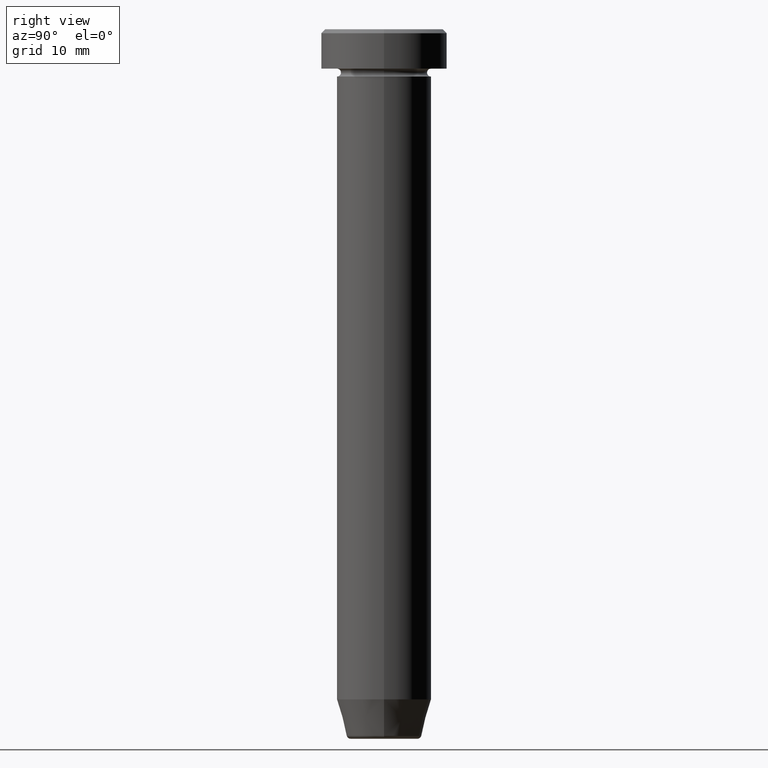
[diagram: clean part render]
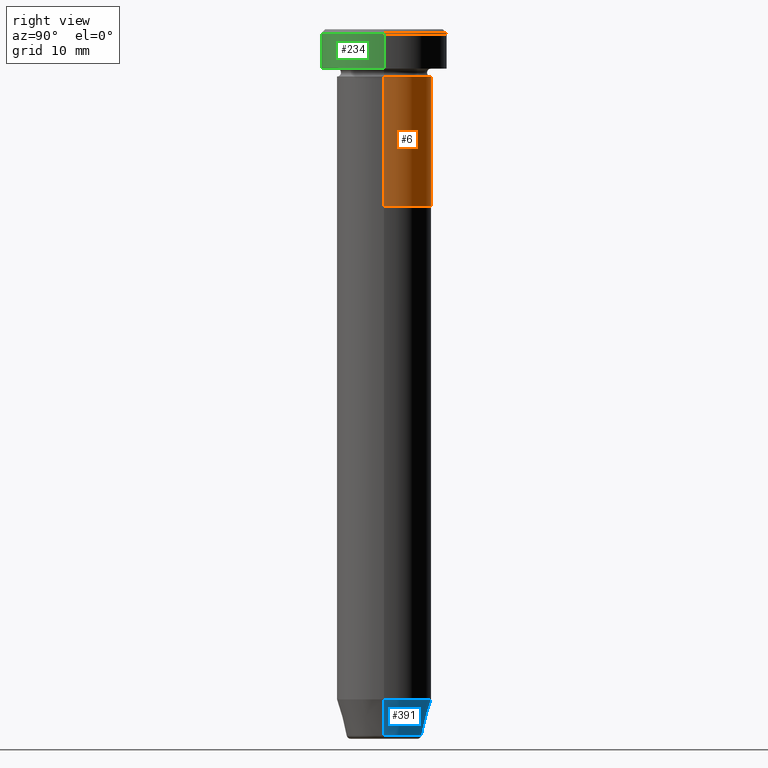
[diagram: same view with three faces highlighted in distinct colors, each labeled with its STEP entity id]
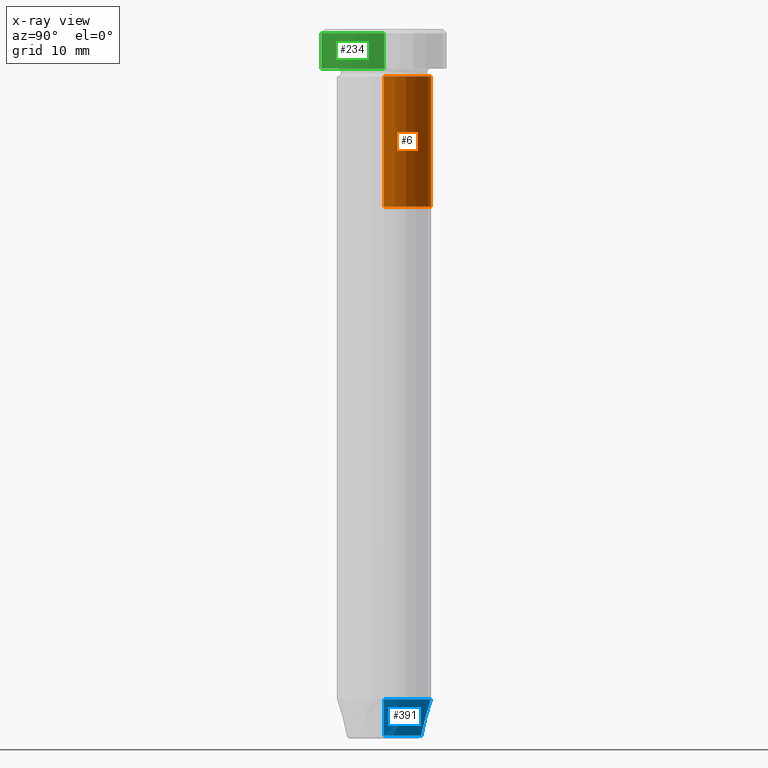
[diagram: x-ray of the same camera — body ghosted, the three highlighted faces saturated]
A machine part, right view with three faces highlighted in distinct colors.
The next image is the same camera in x-ray (body ghosted, the three faces saturated) — at least one of them is partly hidden behind the body in this view.
Their STEP definitions:

[orange] entity #6 — the highlighted cylindrical surface (partial cylindrical patch) has radius 6 mm, axis along (-0, -0, 1).
#6 = ADVANCED_FACE ( 'NONE', ( #348 ), #164, .T. ) ;
#26 = DIRECTION ( 'NONE',  ( -0.000000000000000000, -0.000000000000000000, 1.000000000000000000 ) ) ;
#31 = DIRECTION ( 'NONE',  ( -0.000000000000000000, -0.000000000000000000, 1.000000000000000000 ) ) ;
#35 = CARTESIAN_POINT ( 'NONE',  ( -6.000000000000000000, 7.347880794884119736E-16, 0.000000000000000000 ) ) ;
#37 = VERTEX_POINT ( 'NONE', #581 ) ;
#38 = CARTESIAN_POINT ( 'NONE',  ( 0.000000000000000000, 0.000000000000000000, -6.000000000000000000 ) ) ;
#44 = AXIS2_PLACEMENT_3D ( 'NONE', #350, #529, #481 ) ;
#66 = EDGE_CURVE ( 'NONE', #470, #520, #259, .T. ) ;
#123 = EDGE_CURVE ( 'NONE', #520, #541, #312, .T. ) ;
#127 = ORIENTED_EDGE ( 'NONE', *, *, #461, .F. ) ;
#135 = ORIENTED_EDGE ( 'NONE', *, *, #191, .F. ) ;
#148 = CARTESIAN_POINT ( 'NONE',  ( 6.000000000000000000, 0.000000000000000000, -22.50000000000000000 ) ) ;
#164 = CYLINDRICAL_SURFACE ( 'NONE', #44, 6.000000000000000000 ) ;
#178 = DIRECTION ( 'NONE',  ( -0.000000000000000000, -0.000000000000000000, 1.000000000000000000 ) ) ;
#191 = EDGE_CURVE ( 'NONE', #470, #37, #351, .T. ) ;
#249 = AXIS2_PLACEMENT_3D ( 'NONE', #303, #26, #290 ) ;
#250 = CIRCLE ( 'NONE', #571, 6.000000000000000000 ) ;
#259 = CIRCLE ( 'NONE', #249, 6.000000000000000000 ) ;
#290 = DIRECTION ( 'NONE',  ( 1.000000000000000000, 0.000000000000000000, 0.000000000000000000 ) ) ;
#292 = VECTOR ( 'NONE', #31, 1000.000000000000000 ) ;
#303 = CARTESIAN_POINT ( 'NONE',  ( 0.000000000000000000, 0.000000000000000000, -22.50000000000000000 ) ) ;
#312 = LINE ( 'NONE', #35, #355 ) ;
#335 = CARTESIAN_POINT ( 'NONE',  ( -6.000000000000000000, 7.347880794884119736E-16, -22.50000000000000000 ) ) ;
#348 = FACE_OUTER_BOUND ( 'NONE', #489, .T. ) ;
#350 = CARTESIAN_POINT ( 'NONE',  ( 0.000000000000000000, 0.000000000000000000, 0.000000000000000000 ) ) ;
#351 = LINE ( 'NONE', #587, #292 ) ;
#355 = VECTOR ( 'NONE', #178, 1000.000000000000000 ) ;
#370 = ORIENTED_EDGE ( 'NONE', *, *, #123, .T. ) ;
#417 = DIRECTION ( 'NONE',  ( 1.000000000000000000, 0.000000000000000000, 0.000000000000000000 ) ) ;
#461 = EDGE_CURVE ( 'NONE', #37, #541, #250, .T. ) ;
#470 = VERTEX_POINT ( 'NONE', #148 ) ;
#481 = DIRECTION ( 'NONE',  ( 1.000000000000000000, 0.000000000000000000, 0.000000000000000000 ) ) ;
#489 = EDGE_LOOP ( 'NONE', ( #554, #370, #127, #135 ) ) ;
#508 = CARTESIAN_POINT ( 'NONE',  ( -6.000000000000000000, 7.347880794884119736E-16, -6.000000000000000000 ) ) ;
#520 = VERTEX_POINT ( 'NONE', #335 ) ;
#529 = DIRECTION ( 'NONE',  ( -0.000000000000000000, -0.000000000000000000, 1.000000000000000000 ) ) ;
#541 = VERTEX_POINT ( 'NONE', #508 ) ;
#554 = ORIENTED_EDGE ( 'NONE', *, *, #66, .T. ) ;
#571 = AXIS2_PLACEMENT_3D ( 'NONE', #38, #594, #417 ) ;
#581 = CARTESIAN_POINT ( 'NONE',  ( 6.000000000000000000, 0.000000000000000000, -6.000000000000000000 ) ) ;
#587 = CARTESIAN_POINT ( 'NONE',  ( 6.000000000000000000, 0.000000000000000000, 0.000000000000000000 ) ) ;
#594 = DIRECTION ( 'NONE',  ( -0.000000000000000000, -0.000000000000000000, 1.000000000000000000 ) ) ;

[blue] entity #391 — the highlighted conical surface has half-angle 15 deg.
#11 = CIRCLE ( 'NONE', #172, 6.000000000000000000 ) ;
#13 = CARTESIAN_POINT ( 'NONE',  ( 0.000000000000000000, 0.000000000000000000, -84.99999999999998579 ) ) ;
#53 = EDGE_CURVE ( 'NONE', #336, #122, #262, .T. ) ;
#60 = DIRECTION ( 'NONE',  ( -0.000000000000000000, -0.000000000000000000, 1.000000000000000000 ) ) ;
#68 = FACE_OUTER_BOUND ( 'NONE', #448, .T. ) ;
#85 = CARTESIAN_POINT ( 'NONE',  ( -6.000000000000000000, 7.347880794884119736E-16, -84.99999999999998579 ) ) ;
#91 = DIRECTION ( 'NONE',  ( -1.000000000000000000, 0.000000000000000000, 0.000000000000000000 ) ) ;
#105 = EDGE_CURVE ( 'NONE', #457, #567, #268, .T. ) ;
#117 = CARTESIAN_POINT ( 'NONE',  ( 0.000000000000000000, 0.000000000000000000, -90.00000000000000000 ) ) ;
#122 = VERTEX_POINT ( 'NONE', #85 ) ;
#144 = CARTESIAN_POINT ( 'NONE',  ( 4.759553456999439547, 0.000000000000000000, -89.62940952255125637 ) ) ;
#169 = EDGE_CURVE ( 'NONE', #457, #336, #428, .T. ) ;
#172 = AXIS2_PLACEMENT_3D ( 'NONE', #13, #60, #242 ) ;
#179 = ORIENTED_EDGE ( 'NONE', *, *, #474, .F. ) ;
#194 = CONICAL_SURFACE ( 'NONE', #582, 4.660254037844383745, 0.2617993877991497409 ) ;
#196 = ORIENTED_EDGE ( 'NONE', *, *, #169, .T. ) ;
#214 = CARTESIAN_POINT ( 'NONE',  ( -4.660254037844383745, 5.707165190659652868E-16, -90.00000000000000000 ) ) ;
#226 = CARTESIAN_POINT ( 'NONE',  ( 6.000000000000000000, 0.000000000000000000, -84.99999999999998579 ) ) ;
#242 = DIRECTION ( 'NONE',  ( 1.000000000000000000, 0.000000000000000000, 0.000000000000000000 ) ) ;
#253 = ORIENTED_EDGE ( 'NONE', *, *, #53, .T. ) ;
#262 = LINE ( 'NONE', #214, #512 ) ;
#268 = LINE ( 'NONE', #319, #327 ) ;
#296 = DIRECTION ( 'NONE',  ( -0.2588190451025210170, 3.169619151431768639E-17, 0.9659258262890680902 ) ) ;
#319 = CARTESIAN_POINT ( 'NONE',  ( 4.660254037844383745, 0.000000000000000000, -90.00000000000000000 ) ) ;
#327 = VECTOR ( 'NONE', #407, 1000.000000000000114 ) ;
#336 = VERTEX_POINT ( 'NONE', #471 ) ;
#347 = DIRECTION ( 'NONE',  ( 1.000000000000000000, 0.000000000000000000, 0.000000000000000000 ) ) ;
#391 = ADVANCED_FACE ( 'NONE', ( #68 ), #194, .T. ) ;
#403 = DIRECTION ( 'NONE',  ( -0.000000000000000000, -0.000000000000000000, 1.000000000000000000 ) ) ;
#407 = DIRECTION ( 'NONE',  ( 0.2588190451025210170, 0.000000000000000000, 0.9659258262890680902 ) ) ;
#428 = CIRCLE ( 'NONE', #493, 4.759553456999439547 ) ;
#448 = EDGE_LOOP ( 'NONE', ( #196, #253, #179, #563 ) ) ;
#457 = VERTEX_POINT ( 'NONE', #144 ) ;
#471 = CARTESIAN_POINT ( 'NONE',  ( -4.759553456999439547, 6.588326350684602264E-16, -89.62940952255125637 ) ) ;
#474 = EDGE_CURVE ( 'NONE', #567, #122, #11, .T. ) ;
#486 = CARTESIAN_POINT ( 'NONE',  ( 0.000000000000000000, 0.000000000000000000, -89.62940952255125637 ) ) ;
#493 = AXIS2_PLACEMENT_3D ( 'NONE', #486, #403, #91 ) ;
#512 = VECTOR ( 'NONE', #296, 1000.000000000000114 ) ;
#563 = ORIENTED_EDGE ( 'NONE', *, *, #105, .F. ) ;
#567 = VERTEX_POINT ( 'NONE', #226 ) ;
#573 = DIRECTION ( 'NONE',  ( -0.000000000000000000, -0.000000000000000000, 1.000000000000000000 ) ) ;
#582 = AXIS2_PLACEMENT_3D ( 'NONE', #117, #573, #347 ) ;

[green] entity #234 — the highlighted cylindrical surface (partial cylindrical patch) has radius 8 mm, axis along (-0, -0, 1).
#29 = ORIENTED_EDGE ( 'NONE', *, *, #424, .T. ) ;
#33 = VERTEX_POINT ( 'NONE', #76 ) ;
#34 = LINE ( 'NONE', #211, #423 ) ;
#65 = AXIS2_PLACEMENT_3D ( 'NONE', #456, #82, #545 ) ;
#76 = CARTESIAN_POINT ( 'NONE',  ( -8.000000000000000000, 9.797174393178825657E-16, -0.4999999999999935052 ) ) ;
#77 = CARTESIAN_POINT ( 'NONE',  ( -8.000000000000000000, 9.797174393178825657E-16, -5.000000000000000000 ) ) ;
#82 = DIRECTION ( 'NONE',  ( -0.000000000000000000, -0.000000000000000000, 1.000000000000000000 ) ) ;
#84 = DIRECTION ( 'NONE',  ( -0.000000000000000000, -0.000000000000000000, 1.000000000000000000 ) ) ;
#86 = ORIENTED_EDGE ( 'NONE', *, *, #550, .T. ) ;
#120 = DIRECTION ( 'NONE',  ( -0.000000000000000000, -0.000000000000000000, 1.000000000000000000 ) ) ;
#126 = CARTESIAN_POINT ( 'NONE',  ( 0.000000000000000000, 0.000000000000000000, -0.4999999999999935052 ) ) ;
#142 = DIRECTION ( 'NONE',  ( 1.000000000000000000, 0.000000000000000000, 0.000000000000000000 ) ) ;
#167 = VERTEX_POINT ( 'NONE', #77 ) ;
#168 = DIRECTION ( 'NONE',  ( -0.000000000000000000, -0.000000000000000000, 1.000000000000000000 ) ) ;
#176 = ORIENTED_EDGE ( 'NONE', *, *, #238, .T. ) ;
#184 = DIRECTION ( 'NONE',  ( 0.000000000000000000, 0.000000000000000000, -1.000000000000000000 ) ) ;
#206 = CARTESIAN_POINT ( 'NONE',  ( 8.000000000000000000, 0.000000000000000000, 0.000000000000000000 ) ) ;
#211 = CARTESIAN_POINT ( 'NONE',  ( -8.000000000000000000, 9.797174393178825657E-16, 0.000000000000000000 ) ) ;
#229 = VERTEX_POINT ( 'NONE', #592 ) ;
#232 = CIRCLE ( 'NONE', #473, 8.000000000000000000 ) ;
#234 = ADVANCED_FACE ( 'NONE', ( #579 ), #547, .T. ) ;
#238 = EDGE_CURVE ( 'NONE', #229, #33, #232, .T. ) ;
#280 = EDGE_LOOP ( 'NONE', ( #389, #29, #86, #176 ) ) ;
#334 = LINE ( 'NONE', #206, #597 ) ;
#378 = CIRCLE ( 'NONE', #65, 8.000000000000000000 ) ;
#389 = ORIENTED_EDGE ( 'NONE', *, *, #589, .F. ) ;
#406 = CARTESIAN_POINT ( 'NONE',  ( 8.000000000000000000, 0.000000000000000000, -5.000000000000000000 ) ) ;
#423 = VECTOR ( 'NONE', #120, 1000.000000000000000 ) ;
#424 = EDGE_CURVE ( 'NONE', #167, #574, #378, .T. ) ;
#456 = CARTESIAN_POINT ( 'NONE',  ( 0.000000000000000000, 0.000000000000000000, -5.000000000000000000 ) ) ;
#462 = AXIS2_PLACEMENT_3D ( 'NONE', #491, #168, #539 ) ;
#473 = AXIS2_PLACEMENT_3D ( 'NONE', #126, #184, #142 ) ;
#491 = CARTESIAN_POINT ( 'NONE',  ( 0.000000000000000000, 0.000000000000000000, 0.000000000000000000 ) ) ;
#539 = DIRECTION ( 'NONE',  ( 1.000000000000000000, 0.000000000000000000, 0.000000000000000000 ) ) ;
#545 = DIRECTION ( 'NONE',  ( 1.000000000000000000, 0.000000000000000000, 0.000000000000000000 ) ) ;
#547 = CYLINDRICAL_SURFACE ( 'NONE', #462, 8.000000000000000000 ) ;
#550 = EDGE_CURVE ( 'NONE', #574, #229, #334, .T. ) ;
#574 = VERTEX_POINT ( 'NONE', #406 ) ;
#579 = FACE_OUTER_BOUND ( 'NONE', #280, .T. ) ;
#589 = EDGE_CURVE ( 'NONE', #167, #33, #34, .T. ) ;
#592 = CARTESIAN_POINT ( 'NONE',  ( 8.000000000000000000, 0.000000000000000000, -0.4999999999999935052 ) ) ;
#597 = VECTOR ( 'NONE', #84, 1000.000000000000000 ) ;